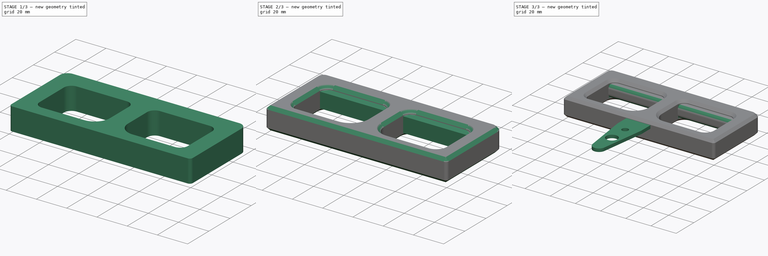
[diagram: build sequence overview — one tinted view per stage of 3, left to right]
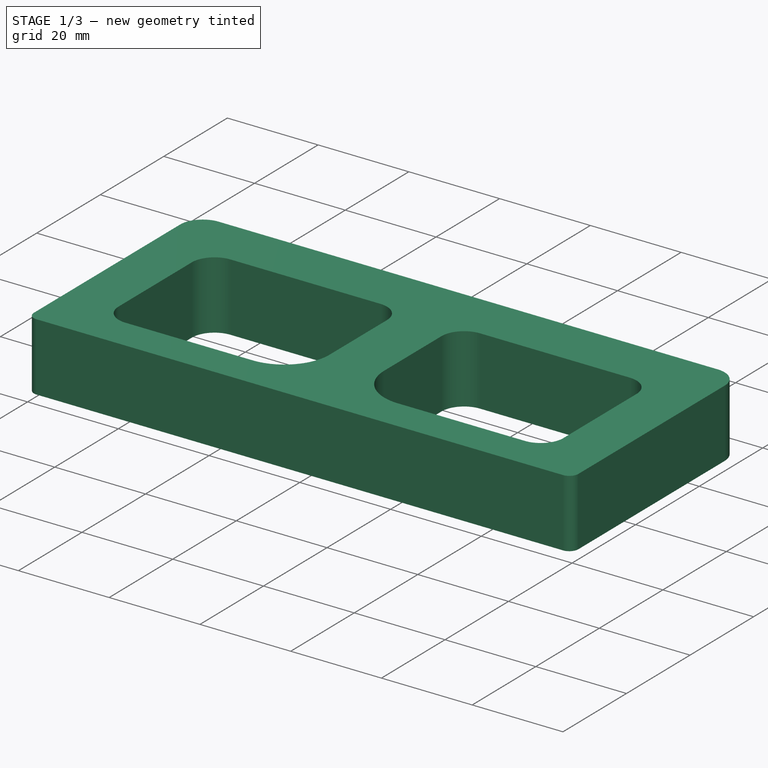
[diagram: stage 1 of 3 — iso view after this stage's code; geometry added in this stage tinted green]
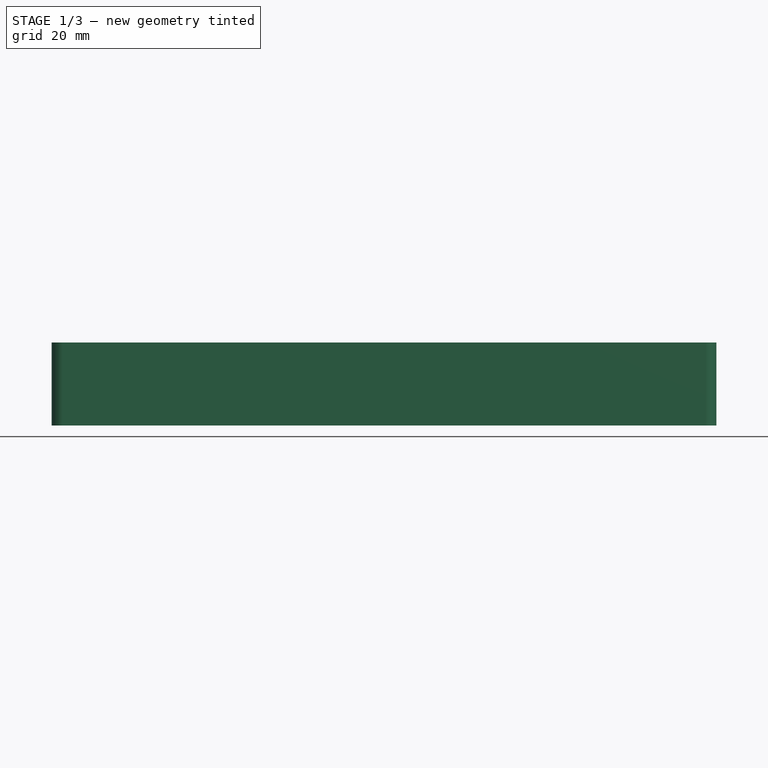
[diagram: stage 1 of 3 — front view after this stage's code; geometry added in this stage tinted green]
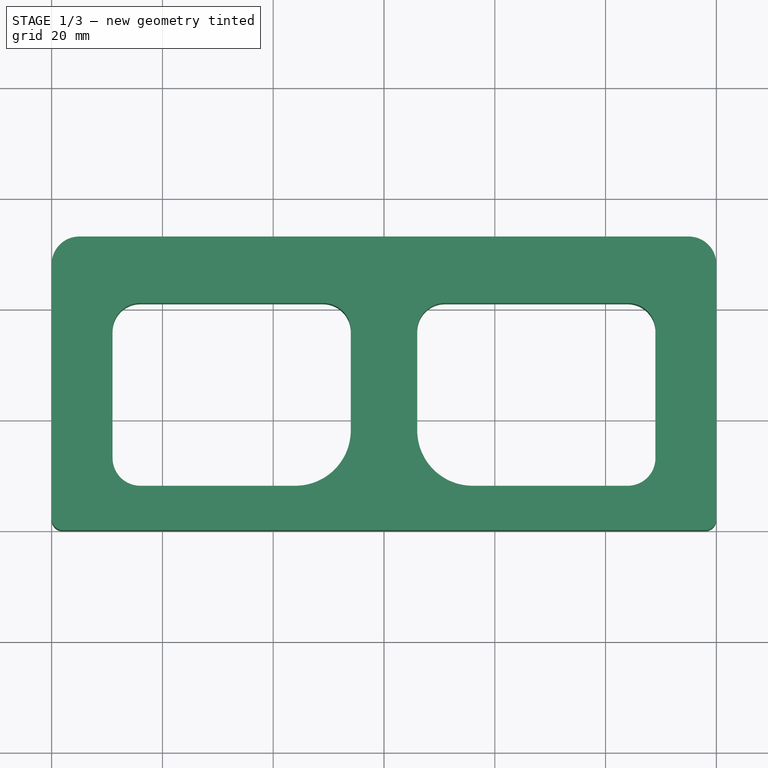
[diagram: stage 1 of 3 — top view after this stage's code; geometry added in this stage tinted green]
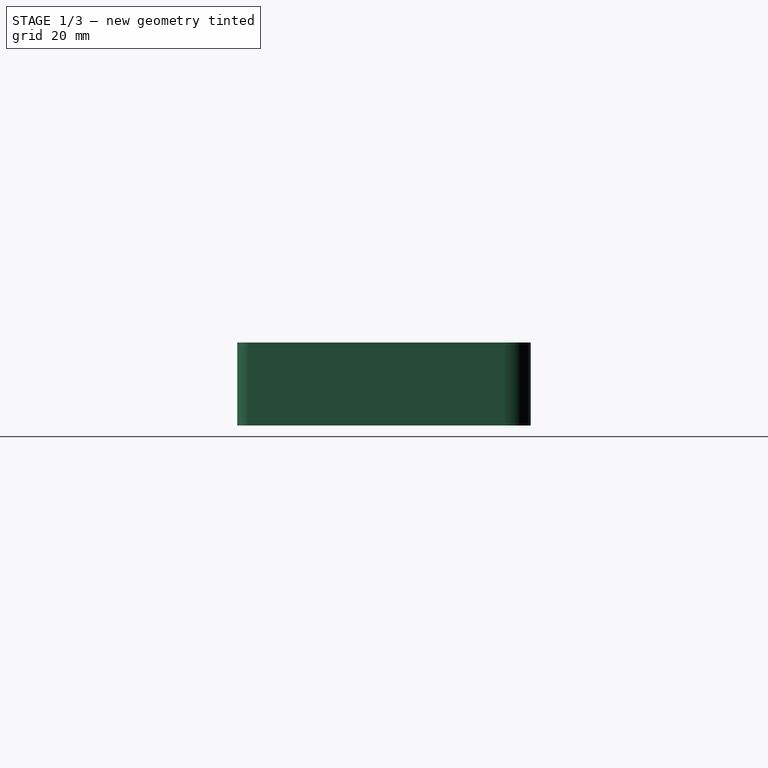
[diagram: stage 1 of 3 — right view after this stage's code; geometry added in this stage tinted green]
FCSTD DOCUMENT  (FreeCAD 0.20R29410 (Git))
Label: restraintEmergencyRelease
License: All rights reserved
LicenseURL: http://en.wikipedia.org/wiki/All_rights_reserved
objects: Sketcher::SketchObject×4, PartDesign::Pad×3, PartDesign::Mirrored×2, PartDesign::Chamfer×1, PartDesign::Fillet×1, PartDesign::Body×1
note: 17 computed .brp shape members not serialized (recipe doc carries the construction recipe); baked Part::Feature solids carry a one-line shape summary decoded from their .brp

FEATURE [Sketcher::SketchObject] Sketch  label="master"
  FullyConstrained = true
FEATURE [Sketcher::SketchObject] Sketch001
  FullyConstrained = true
  MapMode = 5
  Support = -> [XY_Plane]
  sketch-geometry (14):
    g0: LineSegment StartX=0 StartY=0 StartZ=0 EndX=-58 EndY=0 EndZ=0
    g1: ArcOfCircle CenterX=-58 CenterY=2 CenterZ=0 NormalX=0 NormalY=0 NormalZ=1 AngleXU=0 Radius=2 StartAngle=3.14159 EndAngle=4.71239
    g2: LineSegment StartX=-60 StartY=2 StartZ=0 EndX=-60 EndY=48 EndZ=0
    g3: ArcOfCircle CenterX=-55 CenterY=48 CenterZ=0 NormalX=0 NormalY=0 NormalZ=1 AngleXU=0 Radius=5 StartAngle=1.5708 EndAngle=3.14159
    g4: LineSegment StartX=-55 StartY=53 StartZ=0 EndX=0 EndY=53 EndZ=0
    g5: LineSegment StartX=0 StartY=53 StartZ=0 EndX=0 EndY=0 EndZ=0
    g6: LineSegment StartX=-49 StartY=36 StartZ=0 EndX=-49 EndY=13 EndZ=0
    g7: ArcOfCircle CenterX=-44 CenterY=13 CenterZ=0 NormalX=0 NormalY=0 NormalZ=1 AngleXU=0 Radius=5 StartAngle=3.14159 EndAngle=4.71239
    g8: LineSegment StartX=-44 StartY=8 StartZ=0 EndX=-16 EndY=8 EndZ=0
    g9: ArcOfCircle CenterX=-16 CenterY=18 CenterZ=0 NormalX=0 NormalY=0 NormalZ=1 AngleXU=0 Radius=10 StartAngle=4.71239 EndAngle=6.28319
    g10: LineSegment StartX=-6 StartY=18 StartZ=0 EndX=-6 EndY=36 EndZ=0
    g11: ArcOfCircle CenterX=-11 CenterY=36 CenterZ=0 NormalX=0 NormalY=0 NormalZ=1 AngleXU=0 Radius=5 StartAngle=-9e-16 EndAngle=1.5708
    g12: LineSegment StartX=-11 StartY=41 StartZ=0 EndX=-44 EndY=41 EndZ=0
    g13: ArcOfCircle CenterX=-44 CenterY=36 CenterZ=0 NormalX=0 NormalY=0 NormalZ=1 AngleXU=0 Radius=5 StartAngle=1.5708 EndAngle=3.14159
  constraints (35):
    c: Horizontal(g0)
    c: Tangent(g0,g1) = 1.5708
    c: Vertical(g2)
    c: Tangent(g2,g3) = 1.5708
    c: Tangent(g3,g4) = 1.5708
    c: Coincident(g4,g5)
    c: Coincident(g5,g0)
    c: Vertical(g5)
    c: Horizontal(g4)
    c: Radius(g3) = 5
    c: Radius(g1) = 2
    c: DistanceY(g5,g5) = 53
    c: Tangent(g1,g2) = 1.5708
    c: DistanceX(g2,g4) = 60
    c: Coincident(g0,g-1)
    c: Vertical(g6)
    c: Tangent(g6,g7) = -1.5708
    c: Tangent(g7,g8) = -1.5708
    c: Tangent(g8,g9) = -1.5708
    c: Tangent(g9,g10) = -1.5708
    c: Tangent(g10,g11) = -1.5708
    c: Horizontal(g12)
    c: Tangent(g13,g6) = -1.5708
    c: Equal(g13,g7)
    c: Equal(g13,g11)
    c: Radius(g13) = 5
    c: Vertical(g10)
    c: Horizontal(g8)
    c: Radius(g9) = 10
    c: Tangent(g11,g12) = -1.5708
    c: DistanceX(g1,g6) = 11
    c: Tangent(g12,g13) = -1.5708
    c: DistanceY(g12,g3) = 12
    c: DistanceY(g7) = 8
    c: DistanceX(g9) = -6
FEATURE [PartDesign::Pad] Pad
  Direction = (0,0,1)
  Length = 15
  Length2 = 10
  Midplane = true
  Profile = -> Sketch001
  ReferenceAxis = -> Sketch001 [N_Axis]
  Type = 0
FEATURE [PartDesign::Mirrored] Mirrored
  BaseFeature = -> Pad
  MirrorPlane = -> Sketch001 [V_Axis]
  Originals = -> [Pad]
  Refine = true
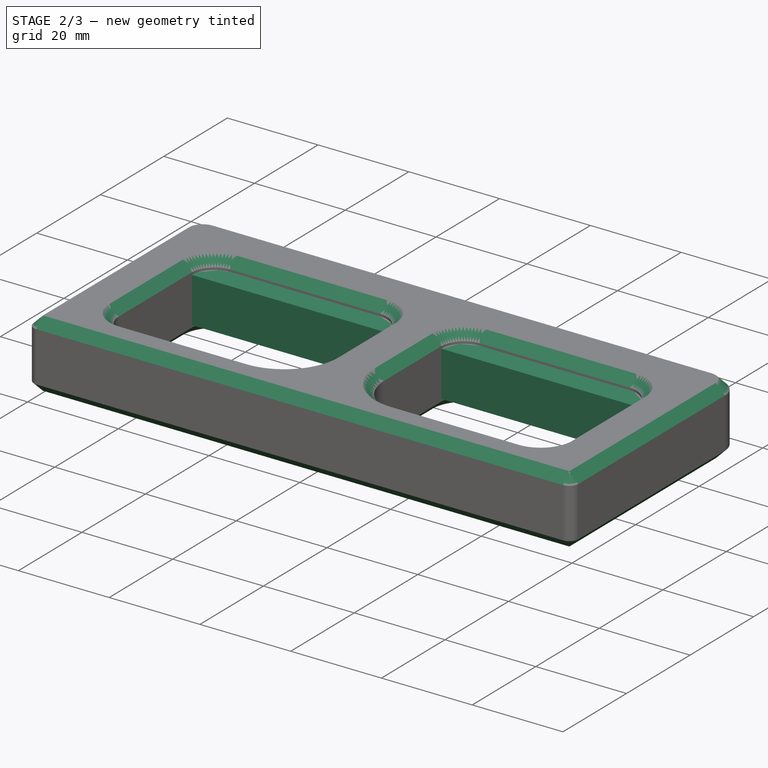
[diagram: stage 2 of 3 — iso view after this stage's code; geometry added in this stage tinted green]
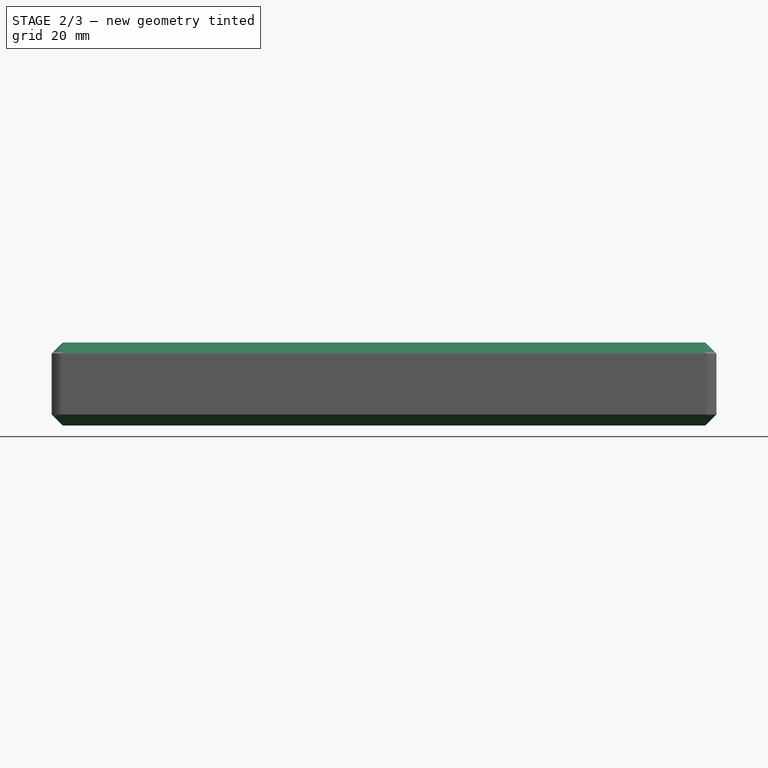
[diagram: stage 2 of 3 — front view after this stage's code; geometry added in this stage tinted green]
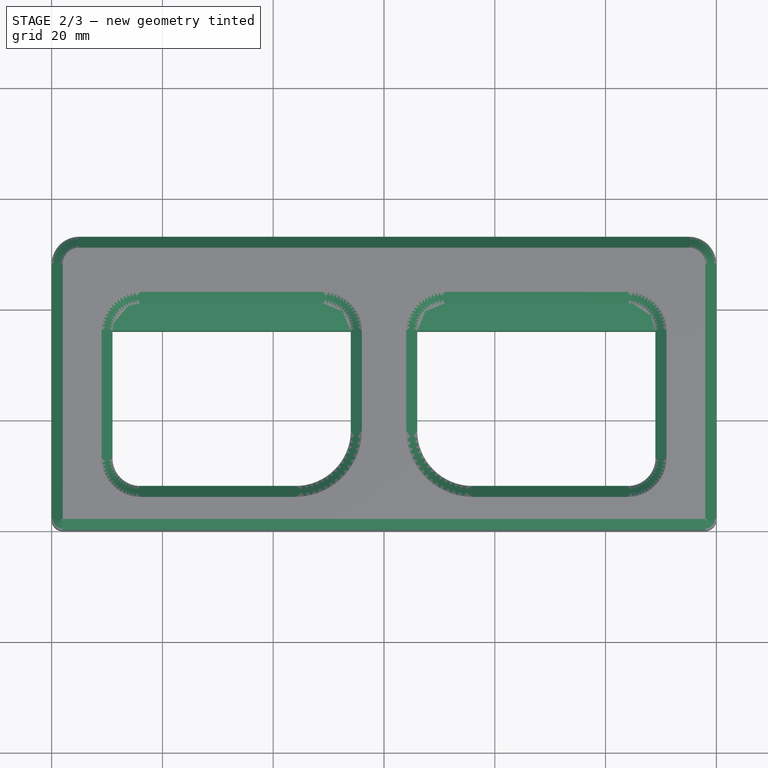
[diagram: stage 2 of 3 — top view after this stage's code; geometry added in this stage tinted green]
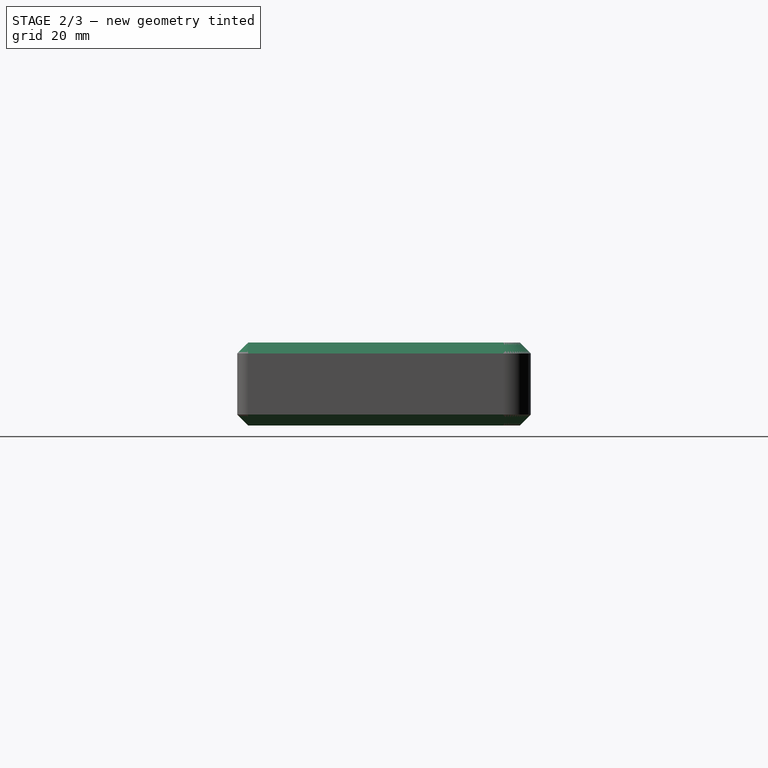
[diagram: stage 2 of 3 — right view after this stage's code; geometry added in this stage tinted green]
FEATURE [PartDesign::Chamfer] Chamfer  label="Chamfer_basicHande"
  Angle = 45
  Base = -> Mirrored [Edge7,Edge6,Edge54,Edge70,Edge34,Edge30]
  BaseFeature = -> Mirrored
  ChamferType = 0
  FlipDirection = false
  Size = 2
  Size2 = 1
  SupportTransform = false
  UseAllEdges = false
FEATURE [Sketcher::SketchObject] Sketch002
  ExternalGeometry = -> [Chamfer]
  FullyConstrained = true
  MapMode = 5
  Support = -> [XY_Plane]
  sketch-geometry (4):
    g0: LineSegment StartX=-49 StartY=36 StartZ=0 EndX=-6 EndY=36 EndZ=0
    g1: LineSegment StartX=-6 StartY=36 StartZ=0 EndX=-6 EndY=41 EndZ=0
    g2: LineSegment StartX=-6 StartY=41 StartZ=0 EndX=-49 EndY=41 EndZ=0
    g3: LineSegment StartX=-49 StartY=41 StartZ=0 EndX=-49 EndY=36 EndZ=0
  constraints (12):
    c: Coincident(g0,g1)
    c: Coincident(g1,g2)
    c: Coincident(g2,g3)
    c: Coincident(g3,g0)
    c: Horizontal(g0)
    c: Horizontal(g2)
    c: Vertical(g1)
    c: Vertical(g3)
    c: PointOnObject(g0,g-3)
    c: Vertical(g1,g-4)
    c: Horizontal(g1,g-5)
    c: DistanceY(g3,g3) = 5
FEATURE [PartDesign::Pad] Pad001  label="basic_pushgrip"
  BaseFeature = -> Chamfer
  Direction = (0,0,1)
  Length = 10
  Length2 = 10
  Midplane = true
  Profile = -> Sketch002
  ReferenceAxis = -> Sketch002 [N_Axis]
  Type = 0
FEATURE [PartDesign::Mirrored] Mirrored001
  BaseFeature = -> Pad001
  MirrorPlane = -> Sketch002 [V_Axis]
  Originals = -> [Pad001]
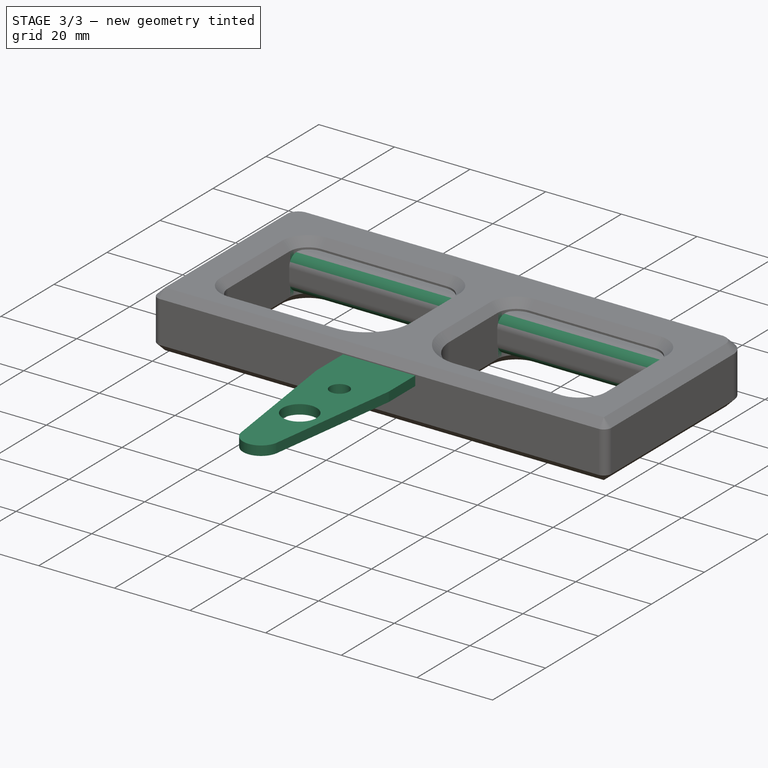
[diagram: stage 3 of 3 — iso view after this stage's code; geometry added in this stage tinted green]
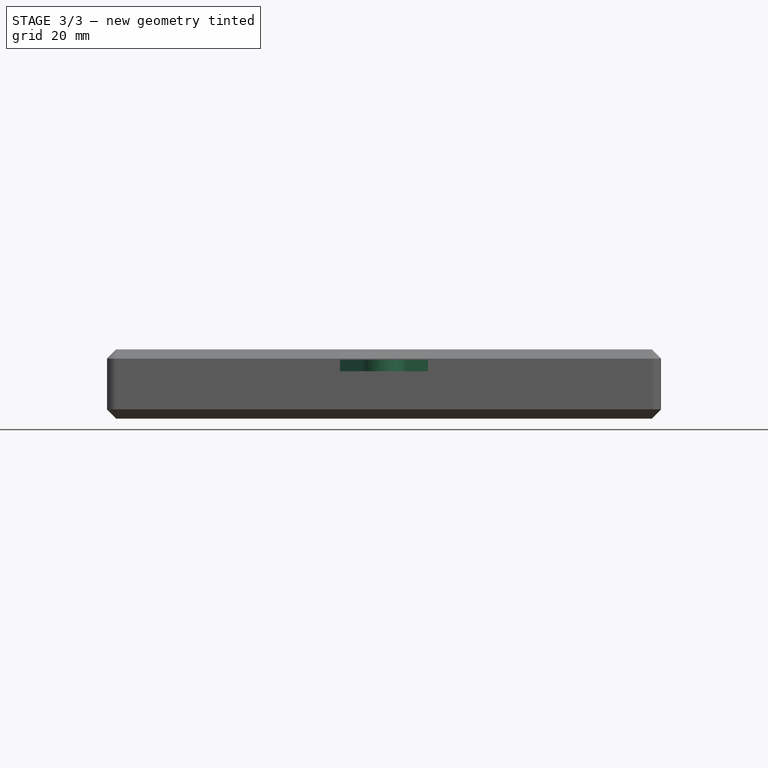
[diagram: stage 3 of 3 — front view after this stage's code; geometry added in this stage tinted green]
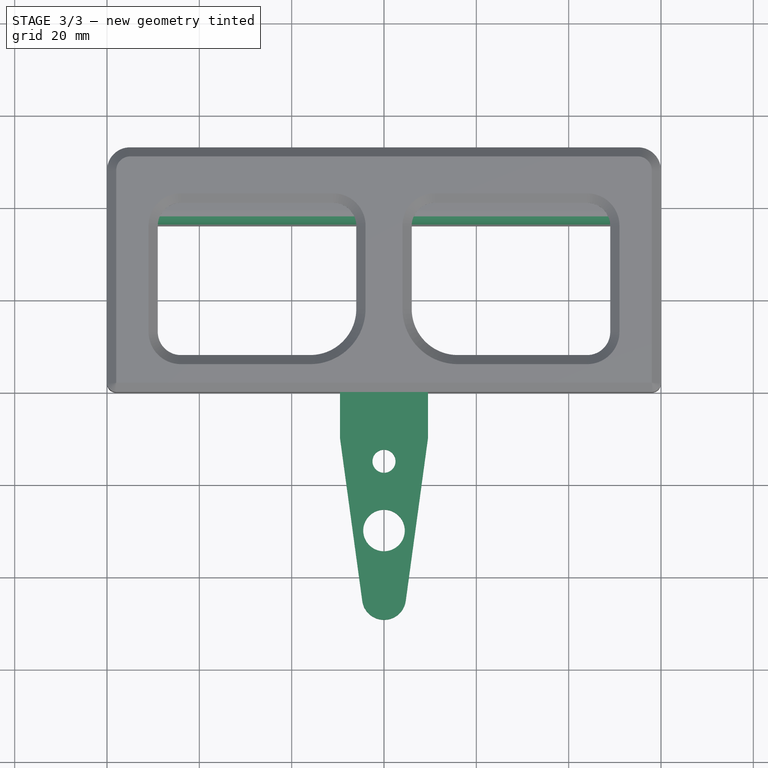
[diagram: stage 3 of 3 — top view after this stage's code; geometry added in this stage tinted green]
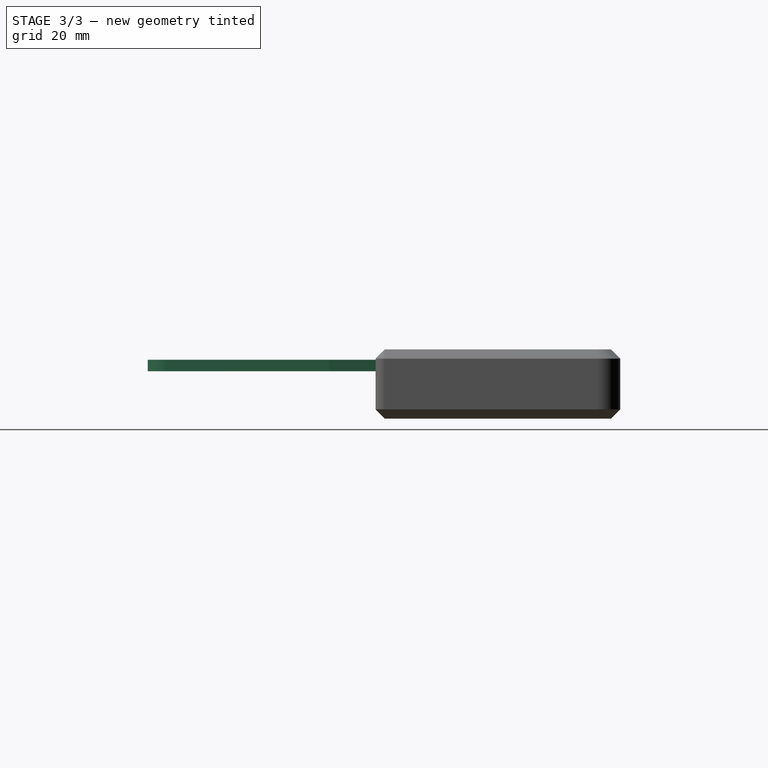
[diagram: stage 3 of 3 — right view after this stage's code; geometry added in this stage tinted green]
FEATURE [PartDesign::Fillet] Fillet  label="pushGrips"
  Base = -> Mirrored001 [Edge194,Edge196,Edge195,Edge193]
  BaseFeature = -> Mirrored001
  Radius = 3.5
  SupportTransform = false
  UseAllEdges = false
FEATURE [Sketcher::SketchObject] Sketch003
  AttachmentOffset = pos=(0,0,4) rot=(0,0,1;0rad)
  ExternalGeometry = -> [Fillet]
  FullyConstrained = true
  MapMode = 5
  Placement = pos=(0,0,4) rot=(0,0,1;0rad)
  Support = -> [XY_Plane]
  sketch-geometry (9):
    g0: LineSegment StartX=-9.525 StartY=0 StartZ=0 EndX=-9.525 EndY=-10 EndZ=0
    g1: LineSegment StartX=-9.525 StartY=-10 StartZ=0 EndX=-4.7117 EndY=-45.2403 EndZ=0
    g2: ArcOfCircle CenterX=0 CenterY=-44.5968 CenterZ=0 NormalX=0 NormalY=0 NormalZ=1 AngleXU=0 Radius=4.75545 StartAngle=3.27734 EndAngle=6.14744
    g3: LineSegment StartX=4.7117 StartY=-45.2403 StartZ=0 EndX=9.525 EndY=-10 EndZ=0
    g4: LineSegment StartX=9.525 StartY=-10 StartZ=0 EndX=9.525 EndY=0 EndZ=0
    g5: LineSegment StartX=-9.525 StartY=0 StartZ=0 EndX=9.525 EndY=0 EndZ=0
    g6: LineSegment StartX=-4.7117 StartY=-49.3522 StartZ=0 EndX=4.7117 EndY=-49.3522 EndZ=0
    g7: Circle CenterX=0 CenterY=-15 CenterZ=0 NormalX=0 NormalY=0 NormalZ=1 AngleXU=0 Radius=2.5
    g8: Circle CenterX=0 CenterY=-30 CenterZ=0 NormalX=0 NormalY=0 NormalZ=1 AngleXU=0 Radius=4.5
  constraints (26):
    c: PointOnObject(g0,g-3)
    c: Vertical(g0)
    c: Coincident(g0,g1)
    c: Tangent(g1,g2) = -1.5708
    c: Tangent(g2,g3) = -1.5708
    c: Coincident(g3,g4)
    c: PointOnObject(g4,g-3)
    c: Vertical(g4)
    c: Symmetric(g0,g3,g-2)
    c: Coincident(g5,g0)
    c: Coincident(g5,g4)
    c: DistanceX(g0,g4) = 19.05
    c: DistanceX(g1,g2) = 9.4234
    c: Horizontal(g6)
    c: Vertical(g6,g2)
    c: Vertical(g6,g1)
    c: Tangent(g2,g6)
    c: DistanceY(g6,g4) = 49.3522
    c: DistanceY(g4,g4) = 10
    c: PointOnObject(g7,g-2)
    c: PointOnObject(g8,g-2)
    c: Diameter(g7) = 5
    c: Diameter(g8) = 9
    c: DistanceY(g7) = -15
    c: DistanceY(g8) = -30
    c: PointOnObject(g2,g-2)
FEATURE [PartDesign::Pad] Pad002
  BaseFeature = -> Fillet
  Direction = (0,0,1)
  Length = 2.5
  Length2 = 10
  Midplane = true
  Profile = -> Sketch003
  ReferenceAxis = -> Sketch003 [N_Axis]
  Type = 0
FEATURE [PartDesign::Body] Body
  Group = -> [Sketch001,Pad,Mirrored,Chamfer,Sketch002,Pad001,Mirrored001,Fillet,Sketch003,Pad002]
  Origin = -> Origin
  Tip = -> Pad002
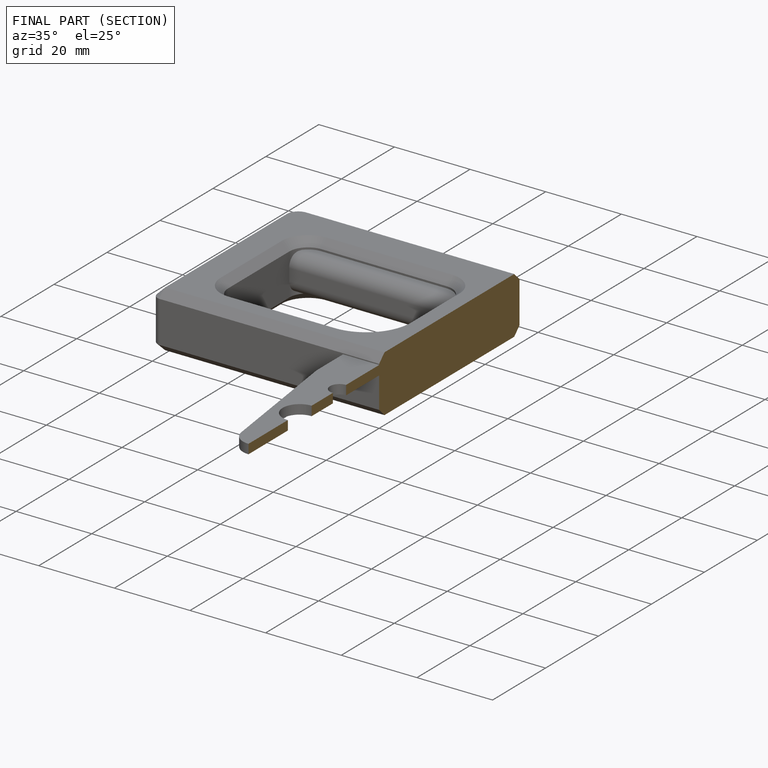
[diagram: finished part — half-section view (interior)]
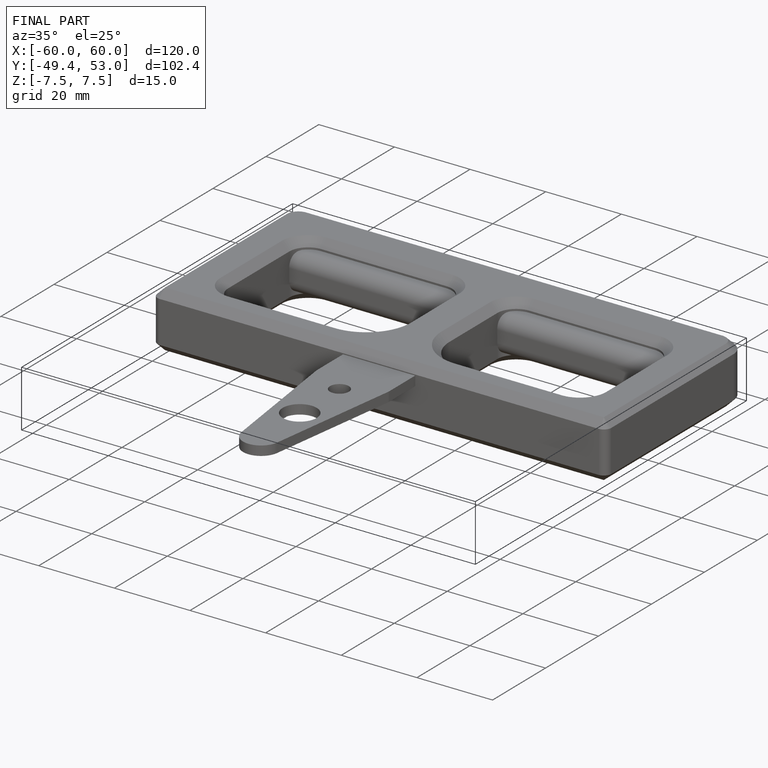
[diagram: finished part — iso view with bounding-box wireframe]
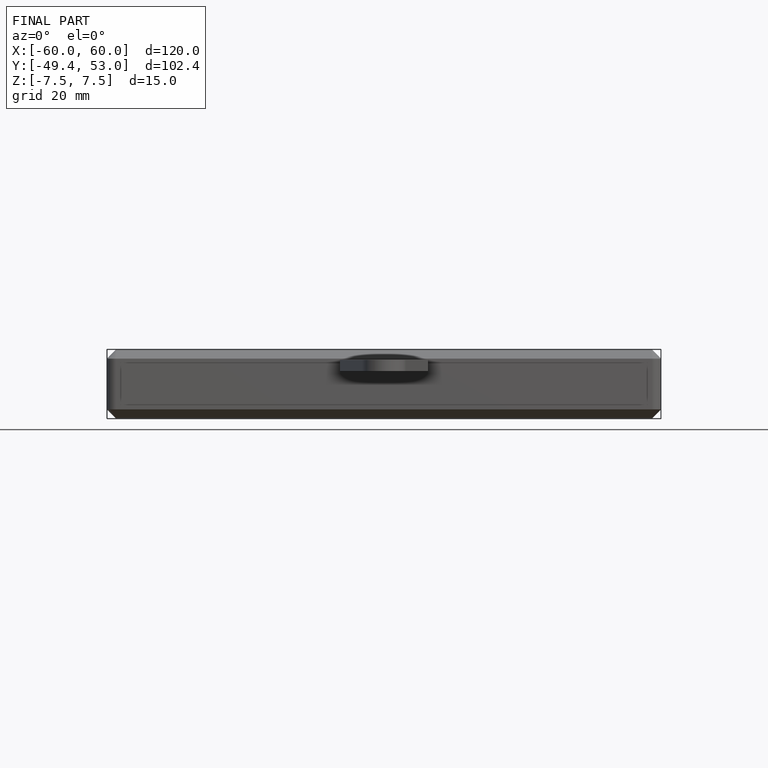
[diagram: finished part — front view with bounding-box wireframe]
